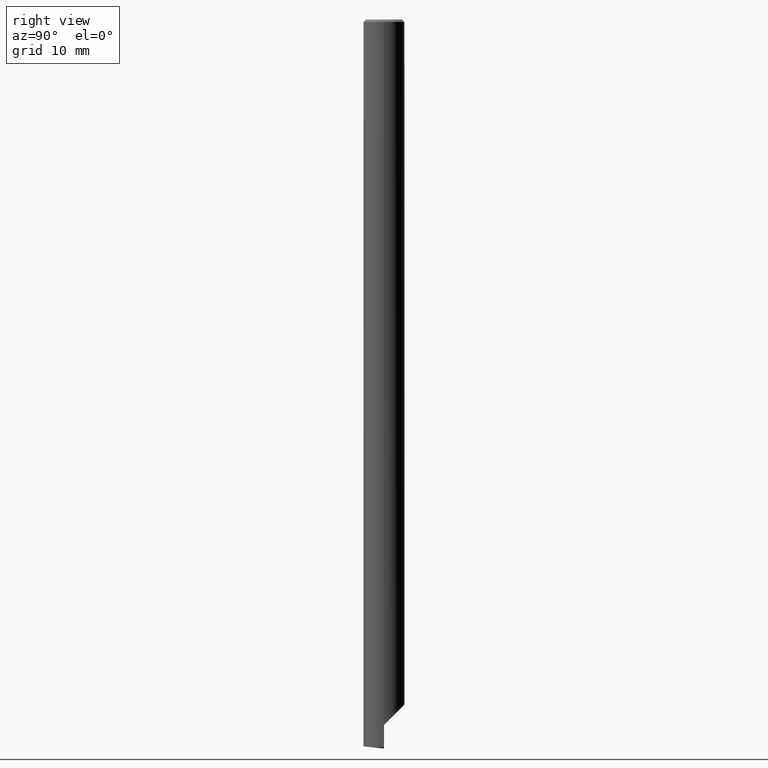
[diagram: clean part render]
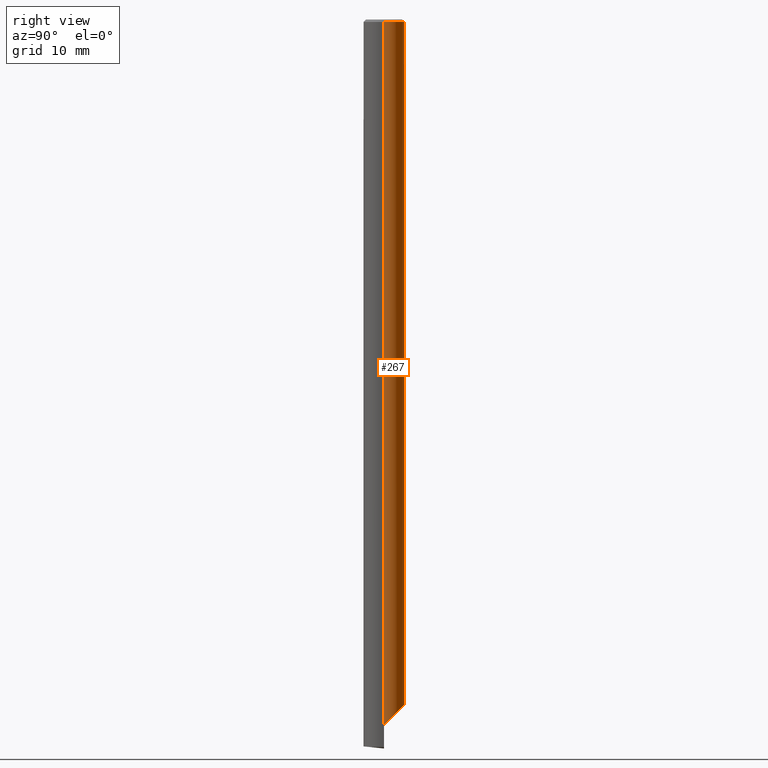
[diagram: same view with one face highlighted and labeled with its STEP entity id]
A machine part, right view. The second image highlights one B-rep face of the part: STEP entity #267.
In plain terms, the highlighted cylindrical surface (edge-blend (fillet) strip) has radius 1.75 mm, axis along (-0, -0, 1).
Its self-contained STEP definition (entity closure, byte-faithful):
#121=VERTEX_POINT('NONE',#331);
#133=VERTEX_POINT('NONE',#345);
#167=EDGE_CURVE('NONE',#313,#133,#382,.F.);
#185=VERTEX_POINT('NONE',#401);
#189=EDGE_CURVE('NONE',#185,#121,#407,.T.);
#207=EDGE_CURVE('NONE',#297,#307,#428,.T.);
#219=VERTEX_POINT('NONE',#442);
#229=EDGE_CURVE('NONE',#219,#313,#452,.F.);
#263=EDGE_CURVE('NONE',#297,#219,#491,.F.);
#265=EDGE_CURVE('NONE',#133,#185,#493,.F.);
#267=ADVANCED_FACE('NONE',(#495),#496,.T.);
#297=VERTEX_POINT('NONE',#528);
#307=VERTEX_POINT('NONE',#538);
#309=EDGE_CURVE('NONE',#121,#307,#540,.F.);
#313=VERTEX_POINT('NONE',#544);
#331=CARTESIAN_POINT('',(-1.57632657181676,-0.173673428183238,-0.199999999999996));
#345=CARTESIAN_POINT('',(-1.42632657181675,0.535198915754661,-59.1820508075688));
#382=LINE('',#624,#625);
#401=CARTESIAN_POINT('',(-1.57632657181676,-0.173673428183238,-58.9222431864335));
#407=LINE('',#655,#656);
#428=LINE('',#689,#690);
#442=CARTESIAN_POINT('',(1.92214085643243,-0.100450123479882,-59.9267766952966));
#452=ELLIPSE('',#772,2.4748737341529,1.75);
#491=B_SPLINE_CURVE_WITH_KNOTS('',3,(#833,#834,#835,#836,#837,#838),.UNSPECIFIED.,.F.,.F.,(4,2,4),(1.32865395385346,1.42283848551059,1.51702301716772),.UNSPECIFIED.);
#493=ELLIPSE('',#841,3.49999999999993,1.75);
#495=FACE_OUTER_BOUND('',#843,.T.);
#496=CYLINDRICAL_SURFACE('',#844,1.75);
#528=CARTESIAN_POINT('',(1.92367342818324,-0.173673428183251,-60.1035533905933));
#538=CARTESIAN_POINT('',(1.92367342818324,-0.173673428183251,-0.199999999999996));
#540=CIRCLE('',#919,1.75);
#544=CARTESIAN_POINT('',(-1.42632657181674,0.535198915754691,-59.2911276560621));
#624=CARTESIAN_POINT('',(-1.42632657181674,0.535198915754691,3.99542205296765));
#625=VECTOR('',#986,1.0);
#655=CARTESIAN_POINT('',(-1.57632657181676,-0.173673428183238,3.99542205296766));
#656=VECTOR('',#1005,1000.0);
#689=CARTESIAN_POINT('',(1.92367342818324,-0.173673428183251,3.99542205296766));
#690=VECTOR('',#1038,1000.0);
#772=AXIS2_PLACEMENT_3D('',#1060,#1061,#1062);
#833=CARTESIAN_POINT('',(1.92214085643243,-0.100450123479882,-59.9267766952966));
#834=CARTESIAN_POINT('',(1.92307013254726,-0.122639903430466,-59.9489664752472));
#835=CARTESIAN_POINT('',(1.92343114258032,-0.141881359664564,-59.9770757393892));
#836=CARTESIAN_POINT('',(1.92370868904138,-0.167398051892938,-60.0386719174925));
#837=CARTESIAN_POINT('',(1.92367342818324,-0.173673428183252,-60.0721585467076));
#838=CARTESIAN_POINT('',(1.92367342818324,-0.173673428183251,-60.1035533905933));
#841=AXIS2_PLACEMENT_3D('',#1110,#1111,#1112);
#843=EDGE_LOOP('',(#1114,#1115,#1116,#1117,#1118,#1119,#1120));
#844=AXIS2_PLACEMENT_3D('',#1121,#1122,#1123);
#919=AXIS2_PLACEMENT_3D('',#1160,#1161,#1162);
#986=DIRECTION('',(0.0,0.0,-1.0));
#1005=DIRECTION('',(0.0,0.0,1.0));
#1038=DIRECTION('',(0.0,0.0,1.0));
#1060=CARTESIAN_POINT('',(0.173673428183244,-0.173673428183244,-60.0));
#1061=DIRECTION('',(2.46885156104043E-015,0.707106781186544,-0.707106781186551));
#1062=DIRECTION('',(-2.46422156252686E-015,-0.707106781186551,-0.707106781186544));
#1110=CARTESIAN_POINT('',(0.173673428183244,-0.173673428183244,-61.953332099679));
#1111=DIRECTION('',(-0.866025403784433,3.02371328761138E-015,-0.50000000000001));
#1112=DIRECTION('',(0.50000000000001,-1.74246777720888E-015,-0.866025403784433));
#1114=ORIENTED_EDGE('',*,*,#265,.T.);
#1115=ORIENTED_EDGE('',*,*,#189,.T.);
#1116=ORIENTED_EDGE('',*,*,#309,.T.);
#1117=ORIENTED_EDGE('',*,*,#207,.F.);
#1118=ORIENTED_EDGE('',*,*,#263,.T.);
#1119=ORIENTED_EDGE('',*,*,#229,.T.);
#1120=ORIENTED_EDGE('',*,*,#167,.T.);
#1121=CARTESIAN_POINT('',(0.173673428183244,-0.173673428183244,3.99542205296766));
#1122=DIRECTION('',(-0.0,-0.0,1.0));
#1123=DIRECTION('',(1.0,-3.48493555441769E-015,0.0));
#1160=CARTESIAN_POINT('',(0.173673428183244,-0.173673428183244,-0.199999999999996));
#1161=DIRECTION('',(0.0,-0.0,1.0));
#1162=DIRECTION('',(1.0,-3.48493555441769E-015,-0.0));